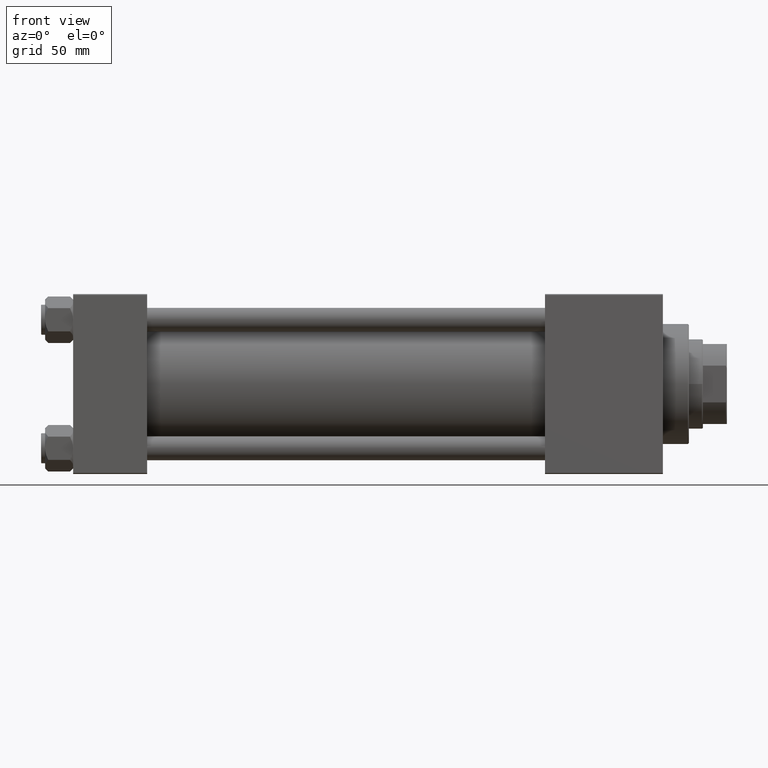
[diagram: clean part render]
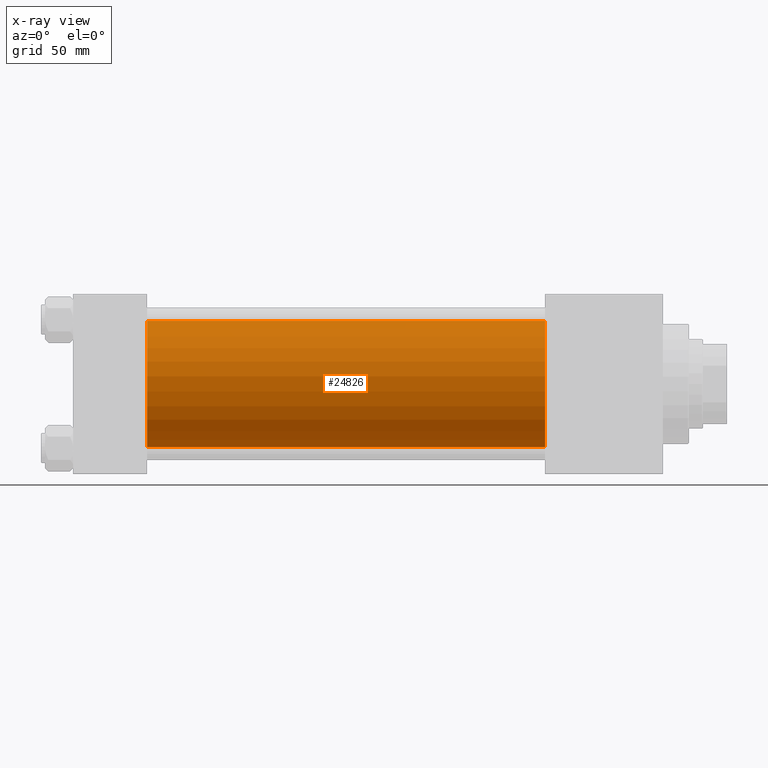
[diagram: x-ray — body ghosted, one internal face saturated and labeled with its STEP entity id]
A machine part, front view, then the same camera in x-ray: the body is ghosted and one INTERNAL B-rep face — a face not visible from any outside direction — is saturated and labeled: STEP entity #24826.
In plain terms, the highlighted cylindrical surface (partial cylindrical patch) has radius 31.5 mm, axis along (-1, -0, -0).
Its self-contained STEP definition (entity closure, byte-faithful):
#1404 = DIRECTION ( 'NONE',  ( 1.000000000000000000, 0.000000000000000000, 0.000000000000000000 ) ) ;
#1635 = DIRECTION ( 'NONE',  ( 0.000000000000000000, 0.000000000000000000, -1.000000000000000000 ) ) ;
#1637 = DIRECTION ( 'NONE',  ( -1.000000000000000000, -0.000000000000000000, -0.000000000000000000 ) ) ;
#3034 = CYLINDRICAL_SURFACE ( 'NONE', #16749, 31.50000000000000000 ) ;
#4254 = ORIENTED_EDGE ( 'NONE', *, *, #28608, .F. ) ;
#6841 = EDGE_CURVE ( 'NONE', #15964, #24675, #29984, .T. ) ;
#7385 = LINE ( 'NONE', #22858, #11159 ) ;
#11159 = VECTOR ( 'NONE', #1637, 1000.000000000000000 ) ;
#14615 = CARTESIAN_POINT ( 'NONE',  ( 236.0000000000000284, 1.255552203348951850E-15, -31.50000000000000000 ) ) ;
#15964 = VERTEX_POINT ( 'NONE', #20641 ) ;
#16749 = AXIS2_PLACEMENT_3D ( 'NONE', #46369, #33937, #45863 ) ;
#18862 = EDGE_LOOP ( 'NONE', ( #34411, #35332, #26303, #4254 ) ) ;
#19135 = CARTESIAN_POINT ( 'NONE',  ( 236.0000000000000284, 1.255552203348951850E-15, -31.50000000000000000 ) ) ;
#20641 = CARTESIAN_POINT ( 'NONE',  ( 37.00000000000000000, -2.602085213965210642E-15, 31.50000000000000000 ) ) ;
#22858 = CARTESIAN_POINT ( 'NONE',  ( 236.0000000000000284, -2.602085213965210642E-15, 31.50000000000000000 ) ) ;
#23348 = VERTEX_POINT ( 'NONE', #19135 ) ;
#24153 = CARTESIAN_POINT ( 'NONE',  ( 236.0000000000000284, -2.602085213965210642E-15, 31.50000000000000000 ) ) ;
#24675 = VERTEX_POINT ( 'NONE', #25863 ) ;
#24826 = ADVANCED_FACE ( 'NONE', ( #27114 ), #3034, .F. ) ;
#25649 = VECTOR ( 'NONE', #30064, 1000.000000000000000 ) ;
#25863 = CARTESIAN_POINT ( 'NONE',  ( 37.00000000000000000, 1.255552203348951850E-15, -31.50000000000000000 ) ) ;
#26303 = ORIENTED_EDGE ( 'NONE', *, *, #6841, .F. ) ;
#27114 = FACE_OUTER_BOUND ( 'NONE', #18862, .T. ) ;
#28608 = EDGE_CURVE ( 'NONE', #33924, #15964, #7385, .T. ) ;
#29984 = CIRCLE ( 'NONE', #42960, 31.50000000000000000 ) ;
#30064 = DIRECTION ( 'NONE',  ( -1.000000000000000000, -0.000000000000000000, -0.000000000000000000 ) ) ;
#31789 = EDGE_CURVE ( 'NONE', #33924, #23348, #36242, .T. ) ;
#33042 = DIRECTION ( 'NONE',  ( 1.000000000000000000, 0.000000000000000000, 0.000000000000000000 ) ) ;
#33924 = VERTEX_POINT ( 'NONE', #24153 ) ;
#33937 = DIRECTION ( 'NONE',  ( -1.000000000000000000, -0.000000000000000000, -0.000000000000000000 ) ) ;
#34411 = ORIENTED_EDGE ( 'NONE', *, *, #31789, .T. ) ;
#35332 = ORIENTED_EDGE ( 'NONE', *, *, #49371, .T. ) ;
#36242 = CIRCLE ( 'NONE', #40300, 31.50000000000000000 ) ;
#36356 = CARTESIAN_POINT ( 'NONE',  ( 236.0000000000000284, -2.602085213965210642E-15, 0.000000000000000000 ) ) ;
#36867 = CARTESIAN_POINT ( 'NONE',  ( 37.00000000000000000, -2.602085213965210642E-15, 0.000000000000000000 ) ) ;
#40300 = AXIS2_PLACEMENT_3D ( 'NONE', #36356, #33042, #1635 ) ;
#42960 = AXIS2_PLACEMENT_3D ( 'NONE', #36867, #1404, #44478 ) ;
#44478 = DIRECTION ( 'NONE',  ( 0.000000000000000000, 0.000000000000000000, -1.000000000000000000 ) ) ;
#45863 = DIRECTION ( 'NONE',  ( 0.000000000000000000, 0.000000000000000000, 1.000000000000000000 ) ) ;
#46369 = CARTESIAN_POINT ( 'NONE',  ( 236.0000000000000284, -2.602085213965210642E-15, 0.000000000000000000 ) ) ;
#49325 = LINE ( 'NONE', #14615, #25649 ) ;
#49371 = EDGE_CURVE ( 'NONE', #23348, #24675, #49325, .T. ) ;